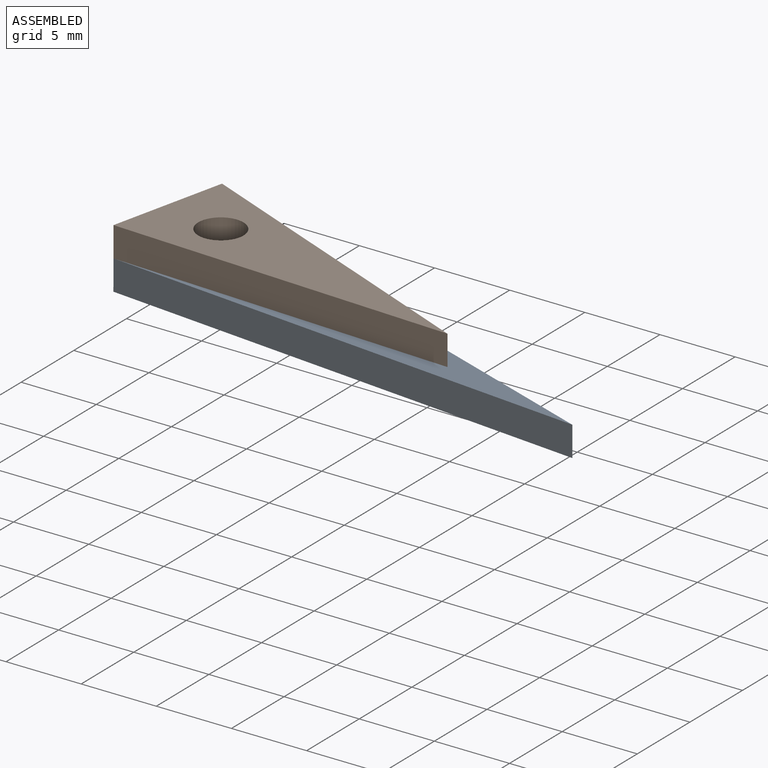
[diagram: assembled view]
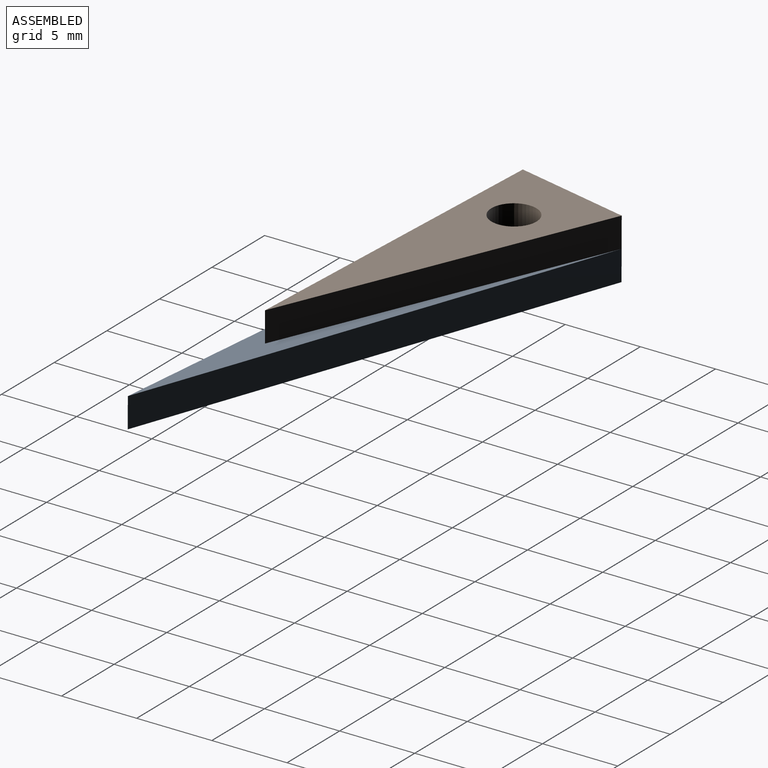
[diagram: assembled view, second angle]
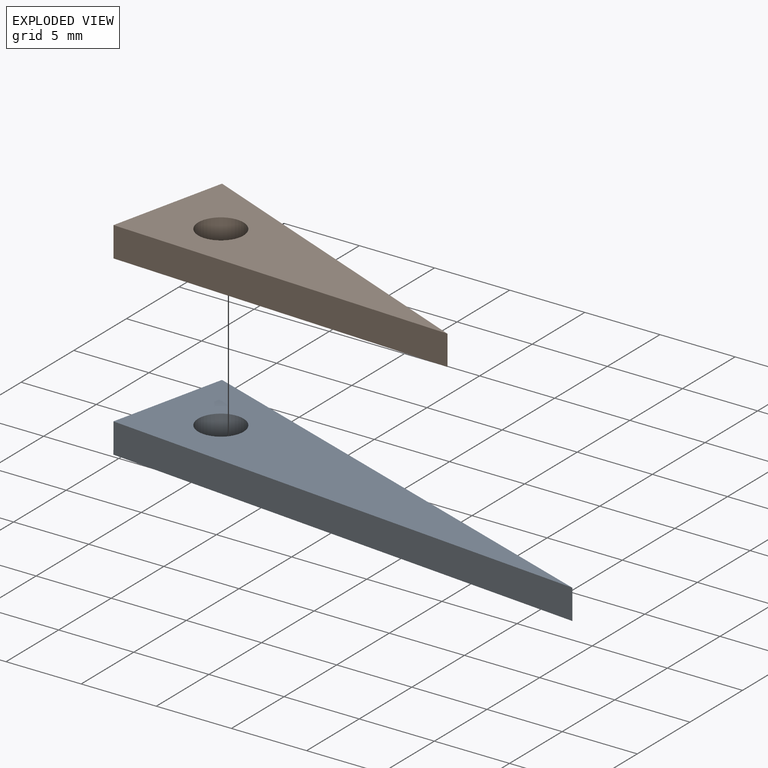
[diagram: exploded view]
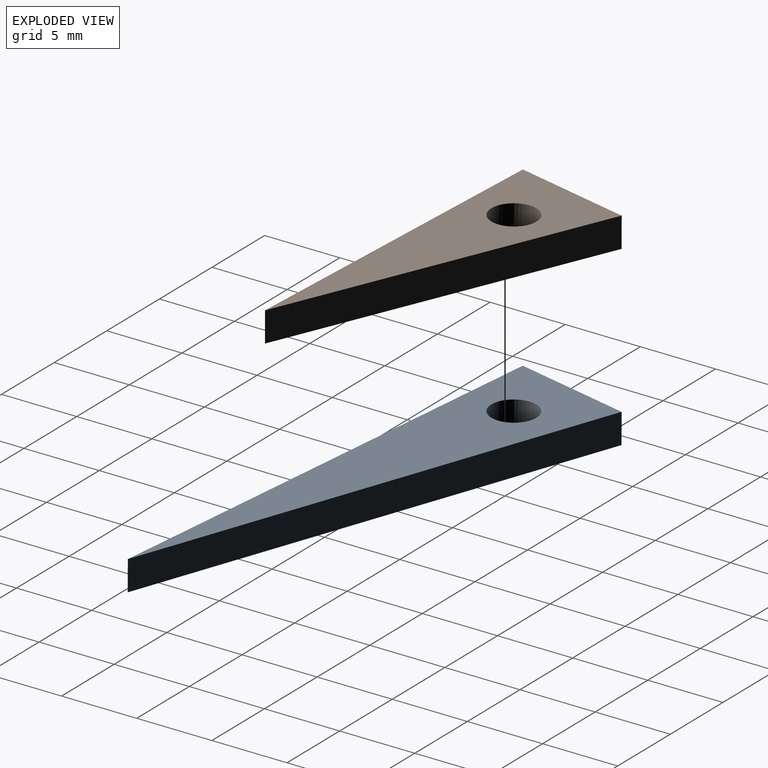
[diagram: exploded view, second angle]
ASSEMBLY  parts=2 mates=2
PART A: 6 faces, bbox 8x32.8x2 mm
  f0: plane 8x2mm, normal (0,-1,0), area 16mm2, adj f1,f2,f4,f5
  f1: plane 32.76x4mm, normal (0.99,0.12,0), area 66mm2, adj f0,f2,f4,f5
  f2: plane 32.76x4mm, normal (-0.99,0.12,0), area 66mm2, adj f0,f1,f4,f5
  f3: cylinder r=1.5mm len=3mm, axis (0,0,-1), area 18.8mm2, adj f4,f5
  f4: plane 32.76x8mm, normal (0,0,1), area 124mm2, adj f0,f1,f2,f3
  f5: plane 32.76x8mm, normal (0,0,-1), area 124mm2, adj f0,f1,f2,f3
PART B: 6 faces, bbox 8x22.6x2 mm
  f0: plane 8x2mm, normal (0,-1,0), area 16mm2, adj f1,f2,f4,f5
  f1: plane 22.65x4mm, normal (0.98,0.17,0), area 46mm2, adj f0,f2,f4,f5
  f2: plane 22.65x4mm, normal (-0.98,0.17,0), area 46mm2, adj f0,f1,f4,f5
  f3: cylinder r=1.5mm len=3mm, axis (0,0,-1), area 18.8mm2, adj f4,f5
  f4: plane 22.65x8mm, normal (0,0,1), area 83.5mm2, adj f0,f1,f2,f3
  f5: plane 22.65x8mm, normal (0,0,-1), area 83.5mm2, adj f0,f1,f2,f3
PLACE A rot(axis=(0,0,-1),102.7deg) t=(-9.85,-0.72,10.56)mm
PLACE B rot(axis=(0,0,-1),102.7deg) t=(29.7,21,12.54)mm
MATE cylindrical A.f3 <-> B.f3  axis (0,0,-1) through (-4.78,2.24,12.56)mm
MATE parallel A.f4 <-> B.f5  axis (0,0,1) through (2.05,0.71,12.57)mm
